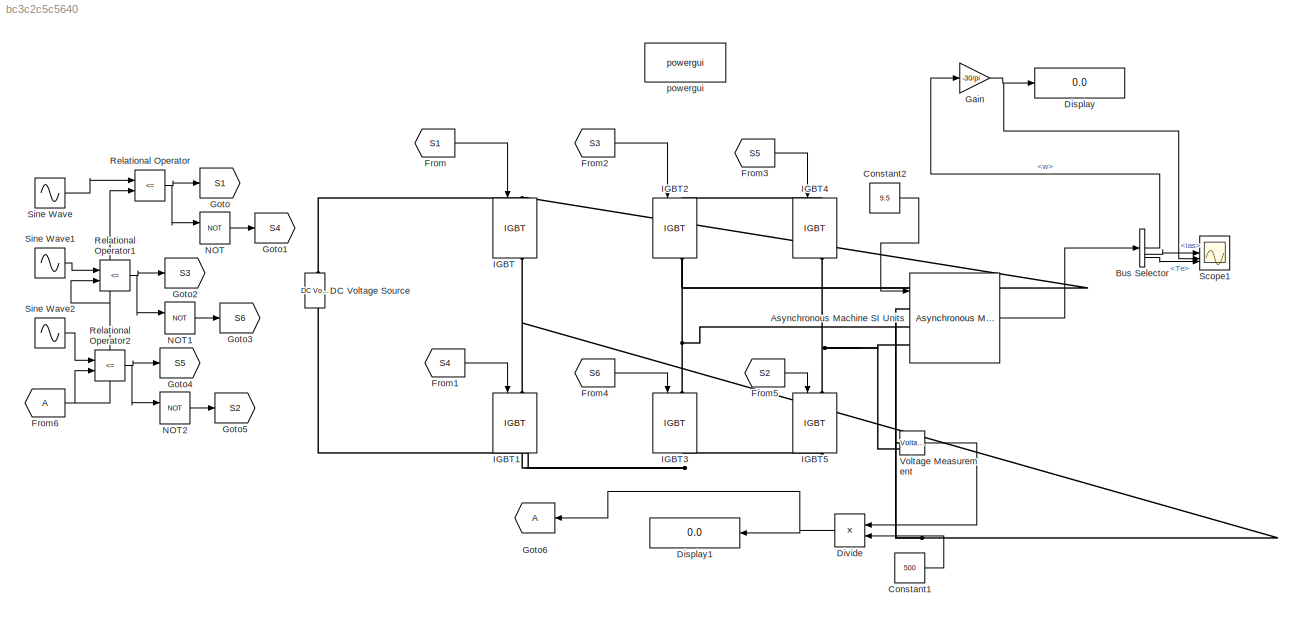
MODEL slx_bc3c2c5c5640
KIND model
CONFIG AbsTol = auto
CONFIG EnableMultiTasking = off
CONFIG FixedStep = auto
CONFIG MaxStep = auto
CONFIG MinStep = auto
CONFIG RelTol = 1e-3
CONFIG SampleTimeConstraint = Unconstrained
CONFIG SolverName = VariableStepAuto
CONFIG StartTime = 0.0
CONFIG StopTime = 1
BLOCK [Reference] Asynchronous Machine SI Units  REF=spsAsynchronousMachineSIUnitsLib/Asynchronous Machine
SI Units
  LibrarySourceBlock = sps_lib/Electrical Machines/Asynchronous Machine\nSI Units
  SourceBlock = spsAsynchronousMachineSIUnitsLib/Asynchronous Machine\nSI Units
  SourceType = Asynchronous Machine
BLOCK [BusSelector] Bus Selector
  OutputSignals = w,ias,Te
BLOCK [Constant] Constant1
  Value = 500
BLOCK [Constant] Constant2
  Value = 9.5
BLOCK [Reference] DC Voltage Source  REF=spsDCVoltageSourceLib/DC Voltage Source
  LibrarySourceBlock = sps_lib/Sources/DC Voltage Source
  SourceBlock = spsDCVoltageSourceLib/DC Voltage Source
  SourceType = DC Voltage Source
BLOCK [Display] Display
  Decimation = 1
BLOCK [Display] Display1
  Decimation = 1
  NameLocation = top
BLOCK [Product] Divide
  Inputs = */
  NameLocation = top
  RndMeth = Zero
  SaturateOnIntegerOverflow = on
BLOCK [From] From
  GotoTag = S1
BLOCK [From] From1
  GotoTag = S4
BLOCK [From] From2
  GotoTag = S3
BLOCK [From] From3
  GotoTag = S5
BLOCK [From] From4
  GotoTag = S6
BLOCK [From] From5
  GotoTag = S2
BLOCK [From] From6
BLOCK [Gain] Gain
  Gain = -30/pi
BLOCK [Goto] Goto
  GotoTag = S1
BLOCK [Goto] Goto1
  GotoTag = S4
BLOCK [Goto] Goto2
  GotoTag = S3
BLOCK [Goto] Goto3
  GotoTag = S6
BLOCK [Goto] Goto4
  GotoTag = S5
BLOCK [Goto] Goto5
  GotoTag = S2
BLOCK [Goto] Goto6
  NameLocation = top
BLOCK [Reference] IGBT  REF=spsIGBTLib/IGBT
  LibrarySourceBlock = sps_lib/Power Electronics/IGBT
  NameLocation = left
  SourceBlock = spsIGBTLib/IGBT
  SourceType = IGBT
BLOCK [Reference] IGBT1  REF=spsIGBTLib/IGBT
  LibrarySourceBlock = sps_lib/Power Electronics/IGBT
  NameLocation = left
  SourceBlock = spsIGBTLib/IGBT
  SourceType = IGBT
BLOCK [Reference] IGBT2  REF=spsIGBTLib/IGBT
  LibrarySourceBlock = sps_lib/Power Electronics/IGBT
  NameLocation = left
  SourceBlock = spsIGBTLib/IGBT
  SourceType = IGBT
BLOCK [Reference] IGBT3  REF=spsIGBTLib/IGBT
  LibrarySourceBlock = sps_lib/Power Electronics/IGBT
  NameLocation = left
  SourceBlock = spsIGBTLib/IGBT
  SourceType = IGBT
BLOCK [Reference] IGBT4  REF=spsIGBTLib/IGBT
  LibrarySourceBlock = sps_lib/Power Electronics/IGBT
  NameLocation = left
  SourceBlock = spsIGBTLib/IGBT
  SourceType = IGBT
BLOCK [Reference] IGBT5  REF=spsIGBTLib/IGBT
  LibrarySourceBlock = sps_lib/Power Electronics/IGBT
  NameLocation = left
  SourceBlock = spsIGBTLib/IGBT
  SourceType = IGBT
BLOCK [Logic] NOT
  AllPortsSameDT = off
  IconShape = distinctive
  Operator = NOT
  OutDataTypeStr = boolean
BLOCK [Logic] NOT1
  AllPortsSameDT = off
  IconShape = distinctive
  Operator = NOT
  OutDataTypeStr = boolean
BLOCK [Logic] NOT2
  AllPortsSameDT = off
  IconShape = distinctive
  Operator = NOT
  OutDataTypeStr = boolean
BLOCK [RelationalOperator] Relational Operator
  InputSameDT = off
  Operator = <=
  OutDataTypeStr = boolean
  RndMeth = Simplest
BLOCK [RelationalOperator] Relational Operator1
  InputSameDT = off
  Operator = <=
  OutDataTypeStr = boolean
  RndMeth = Simplest
BLOCK [RelationalOperator] Relational Operator2
  InputSameDT = off
  Operator = <=
  OutDataTypeStr = boolean
  RndMeth = Simplest
BLOCK [Scope] Scope1
  Floating = off
  NumInputPorts = 3
  ScopeSpecificationString = Simulink.scopes.TimeScopeBlockCfg('CurrentConfiguration', extmgr.ConfigurationSet(extmgr.Configuration('Core','General UI',true,'FigureColor',[1 1 1]),extmgr.Configuration('Core','Source UI',true),extmgr.Configuration('Sources','WiredSimulink',true,'DataLoggingVariableName','ScopeData1'),extmgr.Configuration('Visuals','Time Domain',true,'SerializedDisplays',{struct('MinYLimReal','-48.93448','MaxYL...<+2970ch>
BLOCK [Sin] Sine Wave
  Frequency = 50*2*pi
  SampleTime = 0
BLOCK [Sin] Sine Wave1
  Frequency = 50*2*pi
  Phase = 120*(pi/180)
  SampleTime = 0
BLOCK [Sin] Sine Wave2
  Frequency = 50*2*pi
  Phase = 240*(pi/180)
  SampleTime = 0
BLOCK [Reference] Voltage Measurement  REF=spsVoltageMeasurementLib/Voltage Measurement
  LibrarySourceBlock = sps_lib/Sensors and Measurements/Voltage Measurement
  SourceBlock = spsVoltageMeasurementLib/Voltage Measurement
  SourceType = Voltage Measurement
  UserDataPersistent = on
BLOCK [Reference] powergui  REF=sps_lib/powergui
  LibrarySourceBlock = sps_lib/powergui
  Priority = 1
  SourceBlock = sps_lib/powergui
  SourceType = PSB option menu block
LINE Asynchronous Machine SI Units:1 -> Bus Selector:1
LINE Bus Selector:1 -> Gain:1
LINE Bus Selector:2 -> Scope1:1
LINE Bus Selector:3 -> Scope1:3
LINE Constant1:1 -> Divide:2
LINE Constant2:1 -> Asynchronous Machine SI Units:1
NET Divide:1 -> Display1:1, Goto6:1
LINE From1:1 -> IGBT1:1
LINE From2:1 -> IGBT2:1
LINE From3:1 -> IGBT4:1
LINE From4:1 -> IGBT3:1
LINE From5:1 -> IGBT5:1
NET From6:1 -> Relational Operator1:2, Relational Operator2:2, Relational Operator:2
LINE From:1 -> IGBT:1
NET Gain:1 -> Display:1, Scope1:2
LINE NOT1:1 -> Goto3:1
LINE NOT2:1 -> Goto5:1
LINE NOT:1 -> Goto1:1
NET Relational Operator1:1 -> Goto2:1, NOT1:1
NET Relational Operator2:1 -> Goto4:1, NOT2:1
NET Relational Operator:1 -> Goto:1, NOT:1
LINE Sine Wave1:1 -> Relational Operator1:1
LINE Sine Wave2:1 -> Relational Operator2:1
LINE Sine Wave:1 -> Relational Operator:1
LINE Voltage Measurement:1 -> Divide:1
PNET net1: Asynchronous Machine SI Units:LConn1 -- IGBT1:LConn1 -- IGBT:RConn1 -- Voltage Measurement:LConn1
PNET net2: Asynchronous Machine SI Units:LConn2 -- IGBT2:RConn1 -- IGBT3:LConn1
PNET net3: Asynchronous Machine SI Units:LConn3 -- IGBT4:RConn1 -- IGBT5:LConn1 -- Voltage Measurement:LConn2
PNET net4: DC Voltage Source:LConn1 -- IGBT1:RConn1 -- IGBT3:RConn1 -- IGBT5:RConn1
PNET net5: DC Voltage Source:RConn1 -- IGBT2:LConn1 -- IGBT4:LConn1 -- IGBT:LConn1
note: NET lines group one-source signal fan-out (src -> all destinations, sorted); 1:1 wires keep LINE; PNET lines group multi-terminal physical nets as a canonical sorted terminal list (undirected conserving connections); 2-terminal nets keep the pairwise PLINE form
